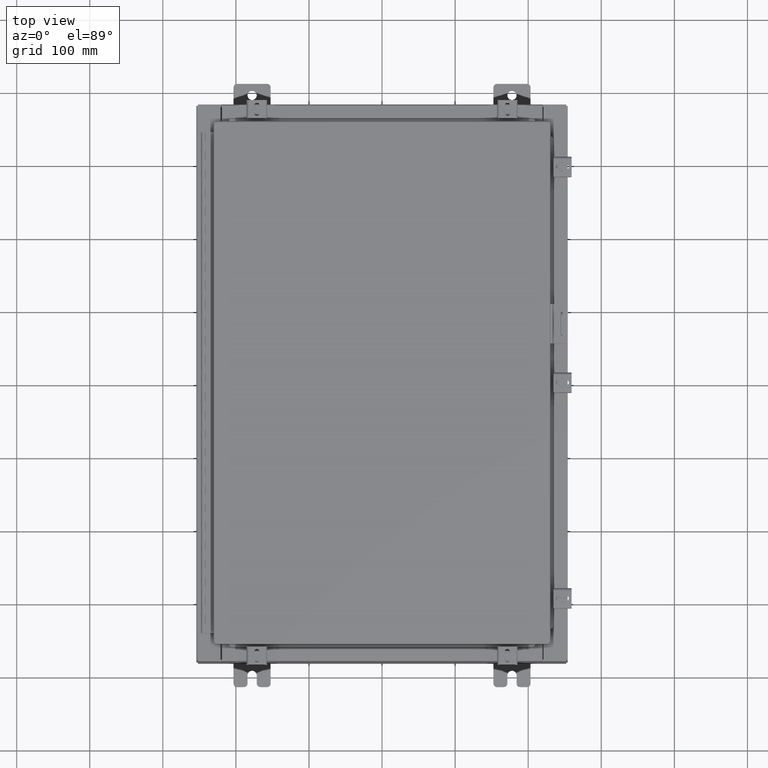
[diagram: clean part render]
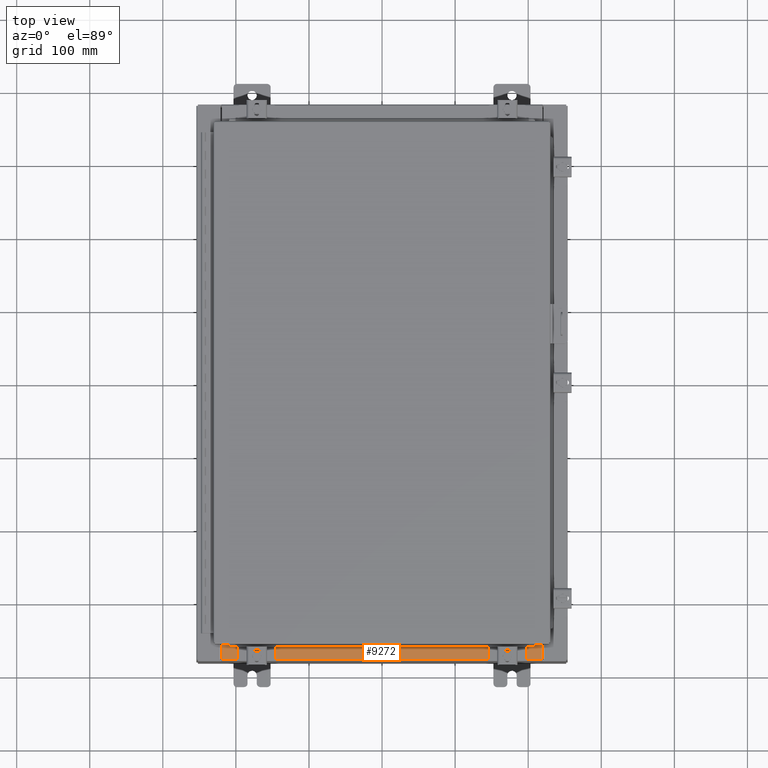
[diagram: same view with one face highlighted and labeled with its STEP entity id]
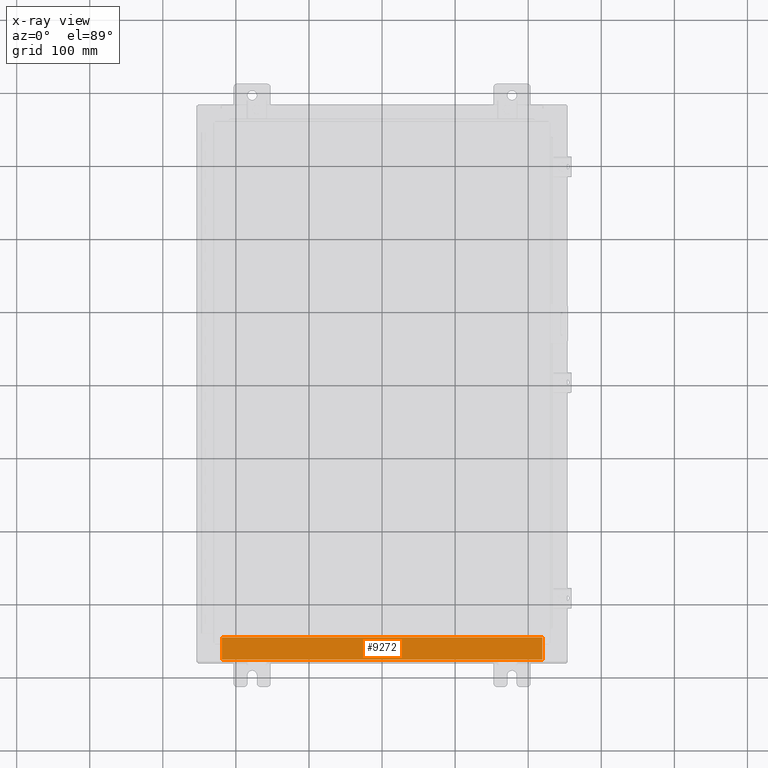
[diagram: x-ray of the same camera — body ghosted, the highlighted face saturated]
A machine part, top view. The second image highlights one B-rep face of the part: STEP entity #9272.
The next image is the same camera in x-ray: the body ghosted, the highlighted face saturated — about 0% of this face is hidden behind the body in this view.
In plain terms, the highlighted planar face has unit normal (-0, -0, 1).
Its self-contained STEP definition (entity closure, byte-faithful):
#1871 = DIRECTION ( 'NONE',  ( -1.000000000000000000, -2.688223102148527500E-016, -8.326672684688674100E-016 ) ) ;
#2405 = CARTESIAN_POINT ( 'NONE',  ( 8.637200000000000000, -1.287300000000001200, 4.000000000000009800 ) ) ;
#2748 = LINE ( 'NONE', #20682, #16521 ) ;
#3871 = VECTOR ( 'NONE', #1871, 39.37007874015748100 ) ;
#4771 = CARTESIAN_POINT ( 'NONE',  ( -8.637200000000000000, -0.07470000000000015500, 3.999999999999994700 ) ) ;
#5417 = LINE ( 'NONE', #4771, #35594 ) ;
#6007 = DIRECTION ( 'NONE',  ( -2.688223102148497400E-016, -1.000000000000000000, 3.734140369554233100E-015 ) ) ;
#6229 = ORIENTED_EDGE ( 'NONE', *, *, #19865, .F. ) ;
#6492 = LINE ( 'NONE', #11761, #13369 ) ;
#9272 = ADVANCED_FACE ( 'NONE', ( #32563 ), #20575, .T. ) ;
#9574 = AXIS2_PLACEMENT_3D ( 'NONE', #20458, #23519, #6007 ) ;
#11761 = CARTESIAN_POINT ( 'NONE',  ( 3.304319507133619200E-015, -0.08770000000000026400, 4.000000000000000000 ) ) ;
#12702 = EDGE_CURVE ( 'NONE', #15928, #23728, #2748, .T. ) ;
#13369 = VECTOR ( 'NONE', #35151, 39.37007874015748100 ) ;
#13606 = DIRECTION ( 'NONE',  ( 2.688223102148497900E-016, 1.000000000000000000, -3.734140369554233100E-015 ) ) ;
#15928 = VERTEX_POINT ( 'NONE', #21760 ) ;
#16521 = VECTOR ( 'NONE', #23634, 39.37007874015748100 ) ;
#16648 = CARTESIAN_POINT ( 'NONE',  ( 8.637200000000000000, -1.287300000000001200, 4.000000000000008900 ) ) ;
#17096 = CARTESIAN_POINT ( 'NONE',  ( -8.637200000000000000, -0.08770000000000026400, 3.999999999999994700 ) ) ;
#17222 = EDGE_CURVE ( 'NONE', #23728, #35227, #27158, .T. ) ;
#18998 = ORIENTED_EDGE ( 'NONE', *, *, #17222, .F. ) ;
#19472 = VERTEX_POINT ( 'NONE', #17096 ) ;
#19865 = EDGE_CURVE ( 'NONE', #35227, #19472, #5417, .T. ) ;
#20458 = CARTESIAN_POINT ( 'NONE',  ( 3.330669074331396100E-015, 1.311287036958846300E-014, 4.000000000000000000 ) ) ;
#20575 = PLANE ( 'NONE',  #9574 ) ;
#20682 = CARTESIAN_POINT ( 'NONE',  ( 8.637200000000000000, -1.300299999999999300, 4.000000000000009800 ) ) ;
#21760 = CARTESIAN_POINT ( 'NONE',  ( 8.637200000000000000, -0.08770000000000026400, 4.000000000000005300 ) ) ;
#23519 = DIRECTION ( 'NONE',  ( 8.326672684688675000E-016, 3.734140369554233100E-015, 1.000000000000000000 ) ) ;
#23634 = DIRECTION ( 'NONE',  ( -2.688223102148497900E-016, -1.000000000000000000, 3.734140369554233100E-015 ) ) ;
#23728 = VERTEX_POINT ( 'NONE', #2405 ) ;
#23848 = EDGE_CURVE ( 'NONE', #15928, #19472, #6492, .T. ) ;
#25581 = ORIENTED_EDGE ( 'NONE', *, *, #12702, .F. ) ;
#27158 = LINE ( 'NONE', #16648, #3871 ) ;
#27347 = ORIENTED_EDGE ( 'NONE', *, *, #23848, .T. ) ;
#32563 = FACE_OUTER_BOUND ( 'NONE', #35270, .T. ) ;
#34499 = CARTESIAN_POINT ( 'NONE',  ( -8.637200000000000000, -1.287299999999999200, 3.999999999999998700 ) ) ;
#35151 = DIRECTION ( 'NONE',  ( -1.000000000000000000, -2.371934490831866800E-016, -8.326672684688674100E-016 ) ) ;
#35227 = VERTEX_POINT ( 'NONE', #34499 ) ;
#35270 = EDGE_LOOP ( 'NONE', ( #6229, #18998, #25581, #27347 ) ) ;
#35594 = VECTOR ( 'NONE', #13606, 39.37007874015748100 ) ;